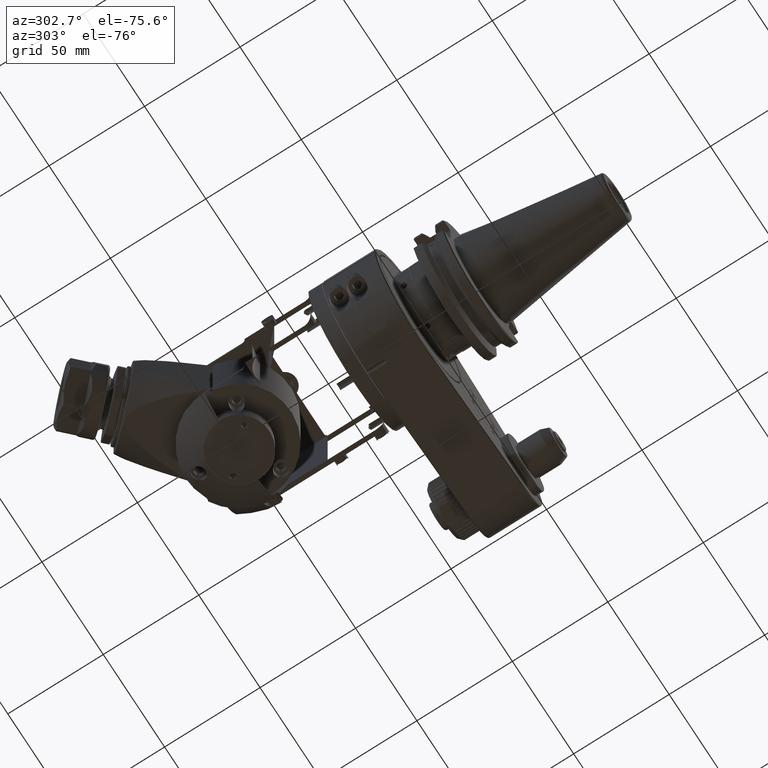
[diagram: clean part render]
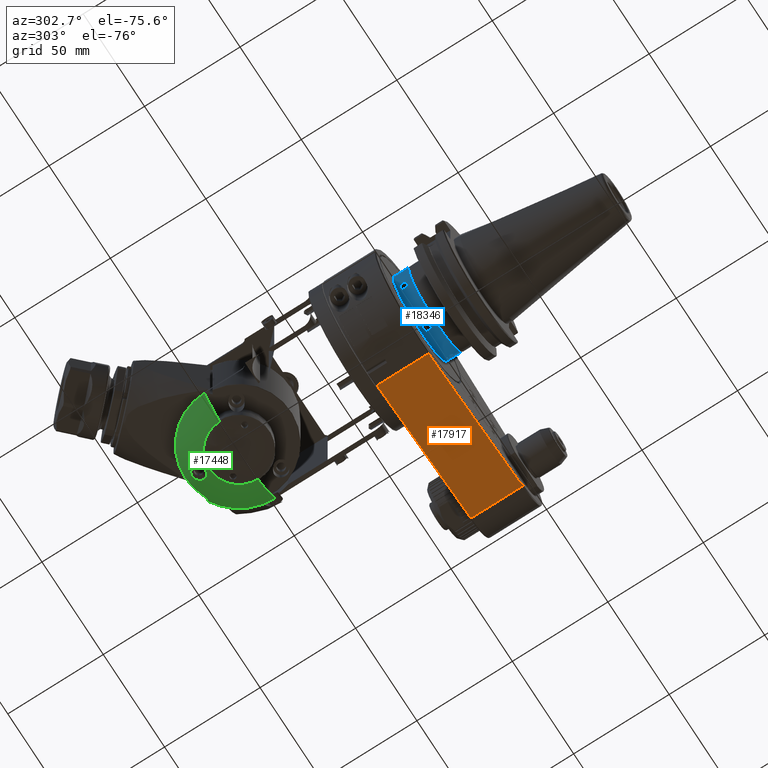
[diagram: same view with three faces highlighted in distinct colors, each labeled with its STEP entity id]
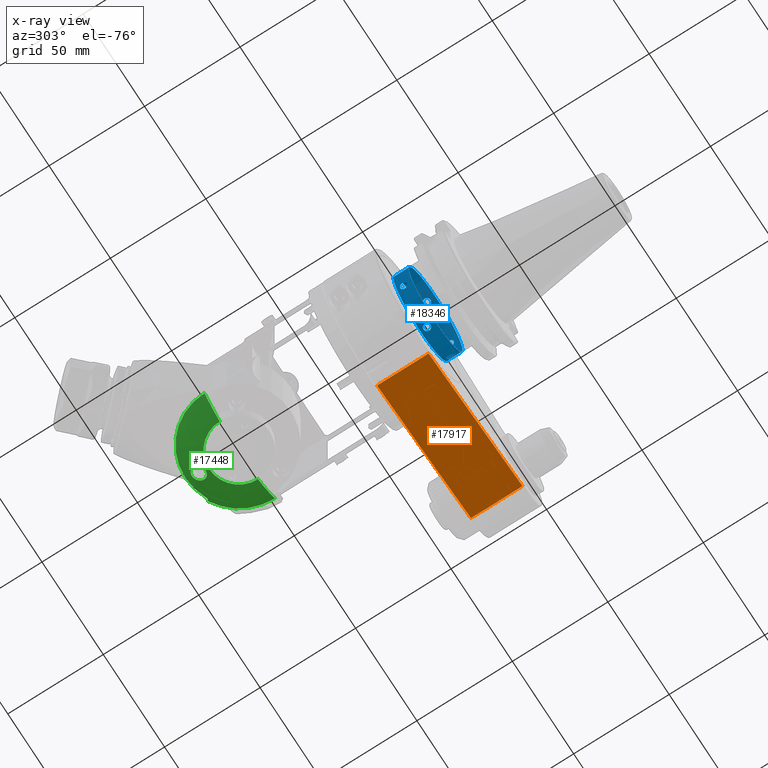
[diagram: x-ray of the same camera — body ghosted, the three highlighted faces saturated]
A machine part, auxiliary view with three faces highlighted in distinct colors.
The next image is the same camera in x-ray (body ghosted, the three faces saturated) — at least one of them is partly hidden behind the body in this view.
Their STEP definitions:

[orange] entity #17917 — the highlighted planar face has unit normal (0.2062, 0, -0.9785).
#632=PLANE('',#19749);
#1589=FACE_OUTER_BOUND('',#2755,.T.);
#2755=EDGE_LOOP('',(#14441,#14442,#14443,#14444));
#5029=LINE('',#31580,#6322);
#5073=LINE('',#31748,#6366);
#5075=LINE('',#31753,#6368);
#5076=LINE('',#31754,#6369);
#6322=VECTOR('',#23552,10.);
#6366=VECTOR('',#23732,26.99994649519);
#6368=VECTOR('',#23738,10.);
#6369=VECTOR('',#23739,26.99995876983);
#8209=VERTEX_POINT('',#31575);
#8210=VERTEX_POINT('',#31579);
#8266=VERTEX_POINT('',#31744);
#8267=VERTEX_POINT('',#31752);
#10393=EDGE_CURVE('',#8209,#8210,#5029,.T.);
#10476=EDGE_CURVE('',#8209,#8266,#5073,.T.);
#10478=EDGE_CURVE('',#8267,#8266,#5075,.T.);
#10479=EDGE_CURVE('',#8210,#8267,#5076,.T.);
#14441=ORIENTED_EDGE('',*,*,#10478,.F.);
#14442=ORIENTED_EDGE('',*,*,#10479,.F.);
#14443=ORIENTED_EDGE('',*,*,#10393,.F.);
#14444=ORIENTED_EDGE('',*,*,#10476,.T.);
#17917=ADVANCED_FACE('',(#1589),#632,.T.);
#19749=AXIS2_PLACEMENT_3D('',#31751,#23736,#23737);
#23552=DIRECTION('',(-0.978499329330379,-3.09308214360713E-14,-0.206249999999996));
#23732=DIRECTION('',(3.786131838683E-10,-1.,-1.854205996952E-9));
#23736=DIRECTION('center_axis',(0.206249999999996,0.,-0.978499329330379));
#23737=DIRECTION('ref_axis',(0.978499329330379,0.,0.206249999999996));
#23738=DIRECTION('',(0.978499329330379,-3.09308214360713E-14,0.206249999999996));
#23739=DIRECTION('',(-2.120057493026E-10,-1.,1.048212665938E-9));
#31575=CARTESIAN_POINT('',(84.1249934785795,-0.50006661342005,-19.569955918573));
#31579=CARTESIAN_POINT('',(7.52812006363607,-0.50005124586895,-35.7152019106784));
#31580=CARTESIAN_POINT('',(26.6773437500002,-0.500000000002543,-31.6789157870722));
#31744=CARTESIAN_POINT('',(84.1250003284126,-27.4998892448473,-19.5699881446779));
#31748=CARTESIAN_POINT('',(84.124994422,-0.5000267779635,-19.56996039439));
#31751=CARTESIAN_POINT('Origin',(7.528125,0.,-35.71522552056));
#31752=CARTESIAN_POINT('',(7.52812005689367,-27.4999486823243,-35.7152018775579));
#31753=CARTESIAN_POINT('',(26.6773437499998,-27.4999999999975,-31.6789157870723));
#31754=CARTESIAN_POINT('',(7.528120789429,-0.5000206006538,-35.71520535402));

[blue] entity #18346 — the highlighted cylindrical surface (bore or boss wall) has radius 22 mm, axis along (0, 1, 0).
#1054=FACE_BOUND('',#3220,.T.);
#1055=FACE_BOUND('',#3221,.T.);
#1056=FACE_BOUND('',#3222,.T.);
#1057=FACE_BOUND('',#3223,.T.);
#1058=FACE_BOUND('',#3224,.T.);
#1059=FACE_BOUND('',#3225,.T.);
#2018=FACE_OUTER_BOUND('',#3219,.T.);
#3219=EDGE_LOOP('',(#16578,#16579,#16580,#16581));
#3220=EDGE_LOOP('',(#16582,#16583));
#3221=EDGE_LOOP('',(#16584,#16585));
#3222=EDGE_LOOP('',(#16586,#16587));
#3223=EDGE_LOOP('',(#16588,#16589));
#3224=EDGE_LOOP('',(#16590,#16591));
#3225=EDGE_LOOP('',(#16592,#16593));
#4321=CIRCLE('',#20491,22.);
#4322=CIRCLE('',#20492,22.);
#5614=LINE('',#36560,#6907);
#6907=VECTOR('',#25761,22.);
#7204=B_SPLINE_CURVE_WITH_KNOTS('',3,(#36532,#36533,#36534,#36535,#36536,
#36537,#36538,#36539,#36540,#36541,#36542,#36543,#36544,#36545,#36546,#36547,
#36548,#36549,#36550,#36551,#36552,#36553),.UNSPECIFIED.,.F.,.F.,(4,2,2,
2,2,2,2,2,2,2,4),(2.70761422656107E-5,0.0359340432566916,0.0729253057835317,
0.138262210485202,0.198758613108278,0.259087729639249,0.289050743533897,
0.349320787720796,0.393453679054119,0.412400549497627,0.426936763639686),
 .UNSPECIFIED.);
#7205=B_SPLINE_CURVE_WITH_KNOTS('',3,(#36564,#36565,#36566,#36567,#36568,
#36569,#36570,#36571,#36572,#36573,#36574,#36575,#36576,#36577,#36578,#36579,
#36580,#36581,#36582,#36583,#36584,#36585),.UNSPECIFIED.,.F.,.F.,(4,2,2,
2,2,2,2,2,2,2,4),(2.66205917725893E-5,0.0359421949751175,0.0730813720902317,
0.135369835287977,0.191331741505798,0.24715371901097,0.274901546833426,
0.33076977689469,0.377612982746382,0.397854273141897,0.412777293558901),
 .UNSPECIFIED.);
#7206=B_SPLINE_CURVE_WITH_KNOTS('',3,(#36586,#36587,#36588,#36589,#36590,
#36591,#36592,#36593,#36594,#36595,#36596,#36597,#36598,#36599,#36600,#36601,
#36602,#36603,#36604,#36605,#36606,#36607),.UNSPECIFIED.,.F.,.F.,(4,2,2,
2,2,2,2,2,2,2,4),(2.66205916898188E-5,0.035942194977705,0.073081372094459,
0.135369835219416,0.1913317413261,0.247153718722746,0.274901546492413,0.330769776441402,
0.377612982174783,0.397854272564408,0.412777292995302),.UNSPECIFIED.);
#7207=B_SPLINE_CURVE_WITH_KNOTS('',3,(#36610,#36611,#36612,#36613,#36614,
#36615,#36616,#36617,#36618,#36619,#36620,#36621,#36622,#36623,#36624,#36625,
#36626,#36627,#36628,#36629,#36630,#36631),.UNSPECIFIED.,.F.,.F.,(4,2,2,
2,2,2,2,2,2,2,4),(2.66205916893746E-5,0.0359421949777266,0.0730813720945034,
0.135369835217522,0.191331741321306,0.247153718715053,0.274901546483259,
0.330769776429287,0.37761298216006,0.397854272548474,0.41277729297846),
 .UNSPECIFIED.);
#7208=B_SPLINE_CURVE_WITH_KNOTS('',3,(#36632,#36633,#36634,#36635,#36636,
#36637,#36638,#36639,#36640,#36641,#36642,#36643,#36644,#36645,#36646,#36647,
#36648,#36649,#36650,#36651,#36652,#36653),.UNSPECIFIED.,.F.,.F.,(4,2,2,
2,2,2,2,2,2,2,4),(2.66205917757193E-5,0.0359421949751185,0.0730813720902252,
0.135369835288192,0.191331741506377,0.247153719011919,0.274901546834568,
0.33076977689624,0.377612982748358,0.397854273144277,0.412777293561644),
 .UNSPECIFIED.);
#7209=B_SPLINE_CURVE_WITH_KNOTS('',3,(#36656,#36657,#36658,#36659,#36660,
#36661,#36662,#36663,#36664,#36665,#36666,#36667,#36668,#36669,#36670,#36671,
#36672,#36673,#36674,#36675,#36676,#36677),.UNSPECIFIED.,.F.,.F.,(4,2,2,
2,2,2,2,2,2,2,4),(2.70255293382581E-5,0.0359237117556276,0.0729128221826624,
0.13814099931121,0.198476055736975,0.25866516525732,0.288546965210307,0.348578840058976,
0.392750995423109,0.411751985308104,0.426325039940762),.UNSPECIFIED.);
#7210=B_SPLINE_CURVE_WITH_KNOTS('',3,(#36678,#36679,#36680,#36681,#36682,
#36683,#36684,#36685,#36686,#36687,#36688,#36689,#36690,#36691,#36692,#36693,
#36694,#36695,#36696,#36697,#36698,#36699),.UNSPECIFIED.,.F.,.F.,(4,2,2,
2,2,2,2,2,2,2,4),(2.70761422656099E-5,0.0359340432567071,0.0729253057835705,
0.138262210485135,0.198758613108166,0.259087729638971,0.28905074353351,
0.349320787720218,0.393453679101162,0.412400549579827,0.426936763750007),
 .UNSPECIFIED.);
#7211=B_SPLINE_CURVE_WITH_KNOTS('',3,(#36702,#36703,#36704,#36705,#36706,
#36707,#36708,#36709,#36710,#36711,#36712,#36713,#36714,#36715,#36716,#36717,
#36718,#36719,#36720,#36721,#36722,#36723),.UNSPECIFIED.,.F.,.F.,(4,2,2,
2,2,2,2,2,2,2,4),(2.66205917712776E-5,0.0359421949751182,0.0730813720902341,
0.135369835287852,0.191331741505479,0.247153719010459,0.27490154683282,
0.330769776893892,0.377612982745423,0.397854273140877,0.412777293557838),
 .UNSPECIFIED.);
#7212=B_SPLINE_CURVE_WITH_KNOTS('',3,(#36724,#36725,#36726,#36727,#36728,
#36729,#36730,#36731,#36732,#36733,#36734,#36735,#36736,#36737,#36738,#36739,
#36740,#36741,#36742,#36743,#36744,#36745),.UNSPECIFIED.,.F.,.F.,(4,2,2,
2,2,2,2,2,2,2,4),(2.66205916884863E-5,0.0359421949777299,0.0730813720945131,
0.135369835218105,0.19133174132275,0.247153718717358,0.274901546486013,
0.330769776432966,0.377612982164585,0.397854272553528,0.412777292983952),
 .UNSPECIFIED.);
#7213=B_SPLINE_CURVE_WITH_KNOTS('',3,(#36746,#36747,#36748,#36749,#36750,
#36751,#36752,#36753,#36754,#36755,#36756,#36757,#36758,#36759,#36760,#36761,
#36762,#36763,#36764,#36765,#36766,#36767),.UNSPECIFIED.,.F.,.F.,(4,2,2,
2,2,2,2,2,2,2,4),(2.70255293400281E-5,0.0359237117570428,0.0729128221855382,
0.138140999285124,0.198476055658925,0.258665165131692,0.288546965061358,
0.348578839862751,0.392750995190078,0.411751985058701,0.426325039678788),
 .UNSPECIFIED.);
#7214=B_SPLINE_CURVE_WITH_KNOTS('',3,(#36770,#36771,#36772,#36773,#36774,
#36775,#36776,#36777,#36778,#36779,#36780,#36781,#36782,#36783,#36784,#36785,
#36786,#36787,#36788,#36789,#36790,#36791),.UNSPECIFIED.,.F.,.F.,(4,2,2,
2,2,2,2,2,2,2,4),(2.66205916893746E-5,0.0359421949777044,0.0730813720944481,
0.135369835218971,0.191331741325009,0.24715371872101,0.274901546490325,
0.330769776438571,0.377612982171327,0.39785427256061,0.412777292991227),
 .UNSPECIFIED.);
#7215=B_SPLINE_CURVE_WITH_KNOTS('',3,(#36792,#36793,#36794,#36795,#36796,
#36797,#36798,#36799,#36800,#36801,#36802,#36803,#36804,#36805,#36806,#36807,
#36808,#36809,#36810,#36811,#36812,#36813),.UNSPECIFIED.,.F.,.F.,(4,2,2,
2,2,2,2,2,2,2,4),(2.66205917761634E-5,0.0359421949751207,0.0730813720902414,
0.135369835288282,0.191331741506558,0.247153719012191,0.274901546834886,
0.330769776896648,0.377612982748828,0.397854273144764,0.412777293562141),
 .UNSPECIFIED.);
#8839=VERTEX_POINT('',#36530);
#8840=VERTEX_POINT('',#36531);
#8841=VERTEX_POINT('',#36557);
#8842=VERTEX_POINT('',#36559);
#8843=VERTEX_POINT('',#36562);
#8844=VERTEX_POINT('',#36563);
#8845=VERTEX_POINT('',#36608);
#8846=VERTEX_POINT('',#36609);
#8847=VERTEX_POINT('',#36654);
#8848=VERTEX_POINT('',#36655);
#8849=VERTEX_POINT('',#36700);
#8850=VERTEX_POINT('',#36701);
#8851=VERTEX_POINT('',#36768);
#8852=VERTEX_POINT('',#36769);
#11459=EDGE_CURVE('',#8839,#8840,#7204,.T.);
#11462=EDGE_CURVE('',#8841,#8841,#4321,.T.);
#11463=EDGE_CURVE('',#8841,#8842,#5614,.T.);
#11464=EDGE_CURVE('',#8842,#8842,#4322,.T.);
#11465=EDGE_CURVE('',#8843,#8844,#7205,.T.);
#11466=EDGE_CURVE('',#8844,#8843,#7206,.T.);
#11467=EDGE_CURVE('',#8845,#8846,#7207,.T.);
#11468=EDGE_CURVE('',#8846,#8845,#7208,.T.);
#11469=EDGE_CURVE('',#8847,#8848,#7209,.T.);
#11470=EDGE_CURVE('',#8848,#8847,#7210,.T.);
#11471=EDGE_CURVE('',#8849,#8850,#7211,.T.);
#11472=EDGE_CURVE('',#8850,#8849,#7212,.T.);
#11473=EDGE_CURVE('',#8840,#8839,#7213,.T.);
#11474=EDGE_CURVE('',#8851,#8852,#7214,.T.);
#11475=EDGE_CURVE('',#8852,#8851,#7215,.T.);
#16578=ORIENTED_EDGE('',*,*,#11462,.T.);
#16579=ORIENTED_EDGE('',*,*,#11463,.T.);
#16580=ORIENTED_EDGE('',*,*,#11464,.T.);
#16581=ORIENTED_EDGE('',*,*,#11463,.F.);
#16582=ORIENTED_EDGE('',*,*,#11465,.T.);
#16583=ORIENTED_EDGE('',*,*,#11466,.T.);
#16584=ORIENTED_EDGE('',*,*,#11467,.T.);
#16585=ORIENTED_EDGE('',*,*,#11468,.T.);
#16586=ORIENTED_EDGE('',*,*,#11469,.T.);
#16587=ORIENTED_EDGE('',*,*,#11470,.T.);
#16588=ORIENTED_EDGE('',*,*,#11471,.T.);
#16589=ORIENTED_EDGE('',*,*,#11472,.T.);
#16590=ORIENTED_EDGE('',*,*,#11473,.T.);
#16591=ORIENTED_EDGE('',*,*,#11459,.T.);
#16592=ORIENTED_EDGE('',*,*,#11474,.T.);
#16593=ORIENTED_EDGE('',*,*,#11475,.T.);
#17366=CYLINDRICAL_SURFACE('',#20490,22.);
#18346=ADVANCED_FACE('',(#2018,#1054,#1055,#1056,#1057,#1058,#1059),#17366,
 .T.);
#20490=AXIS2_PLACEMENT_3D('',#36556,#25757,#25758);
#20491=AXIS2_PLACEMENT_3D('',#36558,#25759,#25760);
#20492=AXIS2_PLACEMENT_3D('',#36561,#25762,#25763);
#25757=DIRECTION('center_axis',(0.,1.,0.));
#25758=DIRECTION('ref_axis',(-1.,0.,0.));
#25759=DIRECTION('center_axis',(0.,-1.,0.));
#25760=DIRECTION('ref_axis',(-1.,0.,0.));
#25761=DIRECTION('',(0.,-1.,0.));
#25762=DIRECTION('center_axis',(0.,1.,0.));
#25763=DIRECTION('ref_axis',(-1.,0.,0.));
#36530=CARTESIAN_POINT('',(-1.86705191588859,-31.4999992386329,-21.9206322222352));
#36531=CARTESIAN_POINT('',(1.8670444659533,-31.5000007591516,-21.920632856776));
#36532=CARTESIAN_POINT('Ctrl Pts',(-1.86739541169952,-31.4999993236028,
-21.9206029656204));
#36533=CARTESIAN_POINT('Ctrl Pts',(-1.86739698436819,-31.6196897936704,
-21.9206028316462));
#36534=CARTESIAN_POINT('Ctrl Pts',(-1.85520339982364,-31.7397646123196,
-21.9216508003254));
#36535=CARTESIAN_POINT('Ctrl Pts',(-1.80760710349478,-31.9781814427059,
-21.9256275612955));
#36536=CARTESIAN_POINT('Ctrl Pts',(-1.77139247149949,-32.0969735721227,
-21.9286219279142));
#36537=CARTESIAN_POINT('Ctrl Pts',(-1.63939477831783,-32.4117140384862,
-21.9389956908176));
#36538=CARTESIAN_POINT('Ctrl Pts',(-1.5098932193699,-32.619720967829,-21.9489369507526));
#36539=CARTESIAN_POINT('Ctrl Pts',(-1.14711351931625,-32.9798121305146,
-21.970768315164));
#36540=CARTESIAN_POINT('Ctrl Pts',(-0.940521159148574,-33.1166206199722,
-21.9810656188696));
#36541=CARTESIAN_POINT('Ctrl Pts',(-0.486083933160052,-33.3026846824959,
-21.9958010078796));
#36542=CARTESIAN_POINT('Ctrl Pts',(-0.243120905256043,-33.3503201592201,
-22.0000276308303));
#36543=CARTESIAN_POINT('Ctrl Pts',(0.124471315934706,-33.3498241831319,
-21.9999860664049));
#36544=CARTESIAN_POINT('Ctrl Pts',(0.246257887979609,-33.3378266032755,
-21.9989478109778));
#36545=CARTESIAN_POINT('Ctrl Pts',(0.606929346827936,-33.2663728849358,
-21.9929463359505));
#36546=CARTESIAN_POINT('Ctrl Pts',(0.8359435278108,-33.1719968755938,-21.9850628722679));
#36547=CARTESIAN_POINT('Ctrl Pts',(1.18966958646694,-32.9368916291985,-21.968320245077));
#36548=CARTESIAN_POINT('Ctrl Pts',(1.38666726577538,-32.7756594505031,-21.9569078493046));
#36549=CARTESIAN_POINT('Ctrl Pts',(1.62798522461737,-32.4143547184903,-21.939802740968));
#36550=CARTESIAN_POINT('Ctrl Pts',(1.72410392535017,-32.2468029336278,-21.9324395680262));
#36551=CARTESIAN_POINT('Ctrl Pts',(1.84146501243408,-31.8541591357841,-21.9228561070323));
#36552=CARTESIAN_POINT('Ctrl Pts',(1.86679211059871,-31.677896155816,-21.9206543520967));
#36553=CARTESIAN_POINT('Ctrl Pts',(1.86670139337399,-31.5000008450991,-21.9206620773182));
#36556=CARTESIAN_POINT('Origin',(0.,-36.725,0.));
#36557=CARTESIAN_POINT('',(22.,-28.,0.));
#36558=CARTESIAN_POINT('Origin',(0.,-28.,0.));
#36559=CARTESIAN_POINT('',(22.,-36.,0.));
#36560=CARTESIAN_POINT('',(22.,-36.725,-2.69422295812418E-15));
#36561=CARTESIAN_POINT('Origin',(0.,-36.,0.));
#36562=CARTESIAN_POINT('',(18.050304834982,-31.500000727675,12.5772212847961));
#36563=CARTESIAN_POINT('',(19.9173455591436,-31.499999272325,9.34341189074776));
#36564=CARTESIAN_POINT('Ctrl Pts',(18.0501088714867,-31.5000006284579,12.5775025234535));
#36565=CARTESIAN_POINT('Ctrl Pts',(18.0501114195227,-31.380281445944,12.5774988667396));
#36566=CARTESIAN_POINT('Ctrl Pts',(18.0571152308996,-31.2601572836355,12.5674636772727));
#36567=CARTESIAN_POINT('Ctrl Pts',(18.0844160521432,-31.0212082208774,12.528147834694));
#36568=CARTESIAN_POINT('Ctrl Pts',(18.1052273079135,-30.9019560901863,12.498122449188));
#36569=CARTESIAN_POINT('Ctrl Pts',(18.1782600597421,-30.5962211398799,12.3918275018355));
#36570=CARTESIAN_POINT('Ctrl Pts',(18.2503885630801,-30.3855765061374,12.286625823399));
#36571=CARTESIAN_POINT('Ctrl Pts',(18.4539520804529,-30.0198159962253,11.9784059808657));
#36572=CARTESIAN_POINT('Ctrl Pts',(18.5661025453278,-29.8831915488591,11.8047280772151));
#36573=CARTESIAN_POINT('Ctrl Pts',(18.8059775242803,-29.6972729274245,11.4187004292407));
#36574=CARTESIAN_POINT('Ctrl Pts',(18.9310966611418,-29.6496813588661,11.2104334738082));
#36575=CARTESIAN_POINT('Ctrl Pts',(19.1147802763928,-29.6501689305436,10.892201765171));
#36576=CARTESIAN_POINT('Ctrl Pts',(19.1747690620457,-29.6621715541998,10.7862217224801));
#36577=CARTESIAN_POINT('Ctrl Pts',(19.3500200886472,-29.7336740998454,10.4706678996254));
#36578=CARTESIAN_POINT('Ctrl Pts',(19.4577684858734,-29.8281616555928,10.2682565381579));
#36579=CARTESIAN_POINT('Ctrl Pts',(19.6301937674292,-30.0780138694421,9.93402795890823));
#36580=CARTESIAN_POINT('Ctrl Pts',(19.7139855411559,-30.2428969682998,9.76643858279938));
#36581=CARTESIAN_POINT('Ctrl Pts',(19.8121583099762,-30.5778670241257,9.56467284945123));
#36582=CARTESIAN_POINT('Ctrl Pts',(19.8552821715775,-30.746166441192,9.47483655281754));
#36583=CARTESIAN_POINT('Ctrl Pts',(19.9065505558538,-31.1468450495491,9.36652716130427));
#36584=CARTESIAN_POINT('Ctrl Pts',(19.917241027207,-31.3225975278239,9.34363472496024));
#36585=CARTESIAN_POINT('Ctrl Pts',(19.9171999810702,-31.4999991731079,9.34372221944012));
#36586=CARTESIAN_POINT('Ctrl Pts',(19.917491137217,-31.4999993715422,9.3431015620554));
#36587=CARTESIAN_POINT('Ctrl Pts',(19.9174892444274,-31.619718554065,9.34310559707741));
#36588=CARTESIAN_POINT('Ctrl Pts',(19.9123004211056,-31.7398427163786,9.35418867038686));
#36589=CARTESIAN_POINT('Ctrl Pts',(19.8919023132792,-31.9787917791576,9.39748979642551));
#36590=CARTESIAN_POINT('Ctrl Pts',(19.8763051945548,-32.0980439098569,9.43052556536642));
#36591=CARTESIAN_POINT('Ctrl Pts',(19.8207674458015,-32.4037788599507,9.54692125736378));
#36592=CARTESIAN_POINT('Ctrl Pts',(19.7657243714507,-32.6144234937552,9.66198721275899));
#36593=CARTESIAN_POINT('Ctrl Pts',(19.6005799164896,-32.9801840037904,9.99238831147948));
#36594=CARTESIAN_POINT('Ctrl Pts',(19.5062456722932,-33.1168084511502,10.1763524149255));
#36595=CARTESIAN_POINT('Ctrl Pts',(19.2918734120665,-33.3027270725759,10.5771040644063));
#36596=CARTESIAN_POINT('Ctrl Pts',(19.1740685063179,-33.3503186411332,10.7895938931545));
#36597=CARTESIAN_POINT('Ctrl Pts',(18.9903135699804,-33.3498310694604,11.1077844245281));
#36598=CARTESIAN_POINT('Ctrl Pts',(18.9285265535434,-33.3378284458057,11.2127262581894));
#36599=CARTESIAN_POINT('Ctrl Pts',(18.7428744400021,-33.2663259001641,11.5222750106737));
#36600=CARTESIAN_POINT('Ctrl Pts',(18.6214552575746,-33.1718383444241,11.7167935406157));
#36601=CARTESIAN_POINT('Ctrl Pts',(18.4182174581115,-32.9219861306659,12.0332325042306));
#36602=CARTESIAN_POINT('Ctrl Pts',(18.314976687836,-32.75710303184,12.1895929970013));
#36603=CARTESIAN_POINT('Ctrl Pts',(18.1893288214142,-32.4221329756525,12.3754959756401));
#36604=CARTESIAN_POINT('Ctrl Pts',(18.1330902371958,-32.2538335585587,12.4577604835409));
#36605=CARTESIAN_POINT('Ctrl Pts',(18.0649257448546,-31.8531549504662,12.5563149024346));
#36606=CARTESIAN_POINT('Ctrl Pts',(18.0504455491,-31.6774024721856,12.5770193403809));
#36607=CARTESIAN_POINT('Ctrl Pts',(18.0505007984774,-31.5000008268922,12.5769400461387));
#36608=CARTESIAN_POINT('',(-19.9173455591436,-31.500000727675,9.34341189074776));
#36609=CARTESIAN_POINT('',(-18.050304834982,-31.499999272325,12.5772212847961));
#36610=CARTESIAN_POINT('Ctrl Pts',(-19.917491137217,-31.5000006284578,9.3431015620554));
#36611=CARTESIAN_POINT('Ctrl Pts',(-19.9174892444274,-31.380281445935,9.34310559707741));
#36612=CARTESIAN_POINT('Ctrl Pts',(-19.9123004211056,-31.2601572836212,
9.35418867038687));
#36613=CARTESIAN_POINT('Ctrl Pts',(-19.8919023132792,-31.0212082208421,
9.39748979642558));
#36614=CARTESIAN_POINT('Ctrl Pts',(-19.8763051945547,-30.9019560901427,
9.43052556536653));
#36615=CARTESIAN_POINT('Ctrl Pts',(-19.8207674458025,-30.5962211400548,
9.54692125736168));
#36616=CARTESIAN_POINT('Ctrl Pts',(-19.7657243714525,-30.3855765062487,
9.66198721275535));
#36617=CARTESIAN_POINT('Ctrl Pts',(-19.6005799164897,-30.0198159962098,
9.99238831147928));
#36618=CARTESIAN_POINT('Ctrl Pts',(-19.5062456722932,-29.8831915488498,
10.1763524149254));
#36619=CARTESIAN_POINT('Ctrl Pts',(-19.2918734120665,-29.6972729274241,
10.5771040644062));
#36620=CARTESIAN_POINT('Ctrl Pts',(-19.1740685063179,-29.6496813588668,
10.7895938931545));
#36621=CARTESIAN_POINT('Ctrl Pts',(-18.9903135699804,-29.6501689305397,
11.1077844245281));
#36622=CARTESIAN_POINT('Ctrl Pts',(-18.9285265535434,-29.6621715541943,
11.2127262581894));
#36623=CARTESIAN_POINT('Ctrl Pts',(-18.7428744400021,-29.733674099836,11.5222750106738));
#36624=CARTESIAN_POINT('Ctrl Pts',(-18.6214552575745,-29.8281616555759,
11.7167935406157));
#36625=CARTESIAN_POINT('Ctrl Pts',(-18.4182174581118,-30.0780138693338,
12.0332325042302));
#36626=CARTESIAN_POINT('Ctrl Pts',(-18.3149766878362,-30.2428969681595,
12.189592997001));
#36627=CARTESIAN_POINT('Ctrl Pts',(-18.1893288214143,-30.5778670243472,
12.37549597564));
#36628=CARTESIAN_POINT('Ctrl Pts',(-18.1330902371958,-30.746166441441,12.4577604835408));
#36629=CARTESIAN_POINT('Ctrl Pts',(-18.0649257448546,-31.1468450495338,
12.5563149024346));
#36630=CARTESIAN_POINT('Ctrl Pts',(-18.0504455491,-31.3225975278144,12.5770193403809));
#36631=CARTESIAN_POINT('Ctrl Pts',(-18.0505007984774,-31.4999991731078,
12.5769400461387));
#36632=CARTESIAN_POINT('Ctrl Pts',(-18.0501088714867,-31.4999993715422,
12.5775025234535));
#36633=CARTESIAN_POINT('Ctrl Pts',(-18.0501114195227,-31.619718554056,12.5774988667396));
#36634=CARTESIAN_POINT('Ctrl Pts',(-18.0571152308996,-31.7398427163645,
12.5674636772727));
#36635=CARTESIAN_POINT('Ctrl Pts',(-18.0844160521432,-31.9787917791226,
12.5281478346941));
#36636=CARTESIAN_POINT('Ctrl Pts',(-18.1052273079135,-32.0980439098136,
12.498122449188));
#36637=CARTESIAN_POINT('Ctrl Pts',(-18.1782600597422,-32.4037788601208,
12.3918275018353));
#36638=CARTESIAN_POINT('Ctrl Pts',(-18.2503885630804,-32.6144234938631,
12.2866258233986));
#36639=CARTESIAN_POINT('Ctrl Pts',(-18.4539520804529,-32.9801840037748,
11.9784059808656));
#36640=CARTESIAN_POINT('Ctrl Pts',(-18.5661025453279,-33.1168084511409,
11.804728077215));
#36641=CARTESIAN_POINT('Ctrl Pts',(-18.8059775242803,-33.3027270725755,
11.4187004292406));
#36642=CARTESIAN_POINT('Ctrl Pts',(-18.9310966611418,-33.3503186411339,
11.2104334738082));
#36643=CARTESIAN_POINT('Ctrl Pts',(-19.1147802763928,-33.3498310694564,
10.892201765171));
#36644=CARTESIAN_POINT('Ctrl Pts',(-19.1747690620457,-33.3378284458002,
10.7862217224801));
#36645=CARTESIAN_POINT('Ctrl Pts',(-19.3500200886472,-33.2663259001546,
10.4706678996254));
#36646=CARTESIAN_POINT('Ctrl Pts',(-19.4577684858734,-33.1718383444072,
10.2682565381579));
#36647=CARTESIAN_POINT('Ctrl Pts',(-19.6301937674294,-32.9219861305577,
9.93402795890792));
#36648=CARTESIAN_POINT('Ctrl Pts',(-19.713985541156,-32.7571030316999,9.76643858279918));
#36649=CARTESIAN_POINT('Ctrl Pts',(-19.8121583099765,-32.4221329758733,
9.56467284945061));
#36650=CARTESIAN_POINT('Ctrl Pts',(-19.8552821715776,-32.253833558807,9.47483655281725));
#36651=CARTESIAN_POINT('Ctrl Pts',(-19.9065505558538,-31.8531549504508,
9.36652716130427));
#36652=CARTESIAN_POINT('Ctrl Pts',(-19.917241027207,-31.6774024721762,9.34363472496024));
#36653=CARTESIAN_POINT('Ctrl Pts',(-19.9171999810702,-31.5000008268921,
9.34372221944012));
#36654=CARTESIAN_POINT('',(-1.86704446595415,-31.5000007591516,21.920632856776));
#36655=CARTESIAN_POINT('',(1.86705191588774,-31.4999992386329,21.9206322222353));
#36656=CARTESIAN_POINT('Ctrl Pts',(-1.86739341797383,-31.5000006717311,
21.9206031354639));
#36657=CARTESIAN_POINT('Ctrl Pts',(-1.86739450466544,-31.3803444724763,
21.9206030428897));
#36658=CARTESIAN_POINT('Ctrl Pts',(-1.85520944130387,-31.2603041556736,
21.9216502738706));
#36659=CARTESIAN_POINT('Ctrl Pts',(-1.80763624846111,-31.0219240654025,
21.9256251484967));
#36660=CARTESIAN_POINT('Ctrl Pts',(-1.77143172964455,-30.9031382647984,
21.9286187361618));
#36661=CARTESIAN_POINT('Ctrl Pts',(-1.63959522648175,-30.5887287160034,
21.9389801250423));
#36662=CARTESIAN_POINT('Ctrl Pts',(-1.51023056982057,-30.3806634283242,
21.948915174781));
#36663=CARTESIAN_POINT('Ctrl Pts',(-1.14730604828256,-30.0203343847848,
21.9707580921138));
#36664=CARTESIAN_POINT('Ctrl Pts',(-0.940743890075967,-29.8835083268855,
21.9810559913224));
#36665=CARTESIAN_POINT('Ctrl Pts',(-0.486246584312842,-29.6973451223135,
21.9957981309227));
#36666=CARTESIAN_POINT('Ctrl Pts',(-0.243277987982387,-29.64968617301,22.0000274427526));
#36667=CARTESIAN_POINT('Ctrl Pts',(0.124474073142143,-29.6501836505737,
21.9999861682736));
#36668=CARTESIAN_POINT('Ctrl Pts',(0.246319636525366,-29.6621784192487,
21.9989473669699));
#36669=CARTESIAN_POINT('Ctrl Pts',(0.606827850765219,-29.7336106059146,
21.9929468518513));
#36670=CARTESIAN_POINT('Ctrl Pts',(0.835641636171417,-29.8278914295365,
21.9850727992187));
#36671=CARTESIAN_POINT('Ctrl Pts',(1.18980571734968,-30.0631333963977,21.9683170028135));
#36672=CARTESIAN_POINT('Ctrl Pts',(1.38663786902639,-30.2244509395204,21.9569076782128));
#36673=CARTESIAN_POINT('Ctrl Pts',(1.62772295883416,-30.5851852555685,21.9398222980286));
#36674=CARTESIAN_POINT('Ctrl Pts',(1.72395787097603,-30.7528140657507,21.9324512889669));
#36675=CARTESIAN_POINT('Ctrl Pts',(1.84144174617667,-31.1456850077966,21.9228581643749));
#36676=CARTESIAN_POINT('Ctrl Pts',(1.86679291818149,-31.3220269857405,21.9206542833204));
#36677=CARTESIAN_POINT('Ctrl Pts',(1.86670254063647,-31.4999991522086,21.9206619796205));
#36678=CARTESIAN_POINT('Ctrl Pts',(1.86739541169952,-31.4999993236028,21.9206029656204));
#36679=CARTESIAN_POINT('Ctrl Pts',(1.86739698436819,-31.6196897936705,21.9206028316462));
#36680=CARTESIAN_POINT('Ctrl Pts',(1.85520339982362,-31.7397646123197,21.9216508003254));
#36681=CARTESIAN_POINT('Ctrl Pts',(1.80760710349474,-31.9781814427061,21.9256275612955));
#36682=CARTESIAN_POINT('Ctrl Pts',(1.77139247149943,-32.0969735721229,21.9286219279142));
#36683=CARTESIAN_POINT('Ctrl Pts',(1.63939477831788,-32.411714038486,21.9389956908176));
#36684=CARTESIAN_POINT('Ctrl Pts',(1.50989321937008,-32.6197209678288,21.9489369507526));
#36685=CARTESIAN_POINT('Ctrl Pts',(1.14711351931602,-32.9798121305148,21.970768315164));
#36686=CARTESIAN_POINT('Ctrl Pts',(0.940521159147973,-33.1166206199725,
21.9810656188696));
#36687=CARTESIAN_POINT('Ctrl Pts',(0.486083933159408,-33.302684682496,21.9958010078796));
#36688=CARTESIAN_POINT('Ctrl Pts',(0.243120905255741,-33.3503201592201,
22.0000276308303));
#36689=CARTESIAN_POINT('Ctrl Pts',(-0.124471315934604,-33.3498241831319,
21.9999860664049));
#36690=CARTESIAN_POINT('Ctrl Pts',(-0.246257887979414,-33.3378266032755,
21.9989478109778));
#36691=CARTESIAN_POINT('Ctrl Pts',(-0.606929346827568,-33.2663728849358,
21.9929463359505));
#36692=CARTESIAN_POINT('Ctrl Pts',(-0.835943527810392,-33.1719968755938,
21.985062872268));
#36693=CARTESIAN_POINT('Ctrl Pts',(-1.18966958662843,-32.9368916290906,
21.9683202450694));
#36694=CARTESIAN_POINT('Ctrl Pts',(-1.38666726586984,-32.7756594503595,
21.9569078492979));
#36695=CARTESIAN_POINT('Ctrl Pts',(-1.6279852246327,-32.4143547184706,21.9398027409669));
#36696=CARTESIAN_POINT('Ctrl Pts',(-1.72410392535615,-32.2468029336145,
21.9324395680257));
#36697=CARTESIAN_POINT('Ctrl Pts',(-1.84146501243358,-31.8541591357882,
21.9228561070324));
#36698=CARTESIAN_POINT('Ctrl Pts',(-1.86679211059871,-31.6778961558178,
21.9206543520967));
#36699=CARTESIAN_POINT('Ctrl Pts',(-1.86670139337399,-31.5000008450991,
21.9206620773182));
#36700=CARTESIAN_POINT('',(-18.050304834982,-31.500000727675,-12.5772212847961));
#36701=CARTESIAN_POINT('',(-19.9173455591436,-31.499999272325,-9.34341189074776));
#36702=CARTESIAN_POINT('Ctrl Pts',(-18.0501088714867,-31.5000006284579,
-12.5775025234535));
#36703=CARTESIAN_POINT('Ctrl Pts',(-18.0501114195227,-31.380281445944,-12.5774988667396));
#36704=CARTESIAN_POINT('Ctrl Pts',(-18.0571152308996,-31.2601572836355,
-12.5674636772727));
#36705=CARTESIAN_POINT('Ctrl Pts',(-18.0844160521432,-31.0212082208774,
-12.528147834694));
#36706=CARTESIAN_POINT('Ctrl Pts',(-18.1052273079135,-30.9019560901863,
-12.498122449188));
#36707=CARTESIAN_POINT('Ctrl Pts',(-18.178260059742,-30.5962211398803,-12.3918275018357));
#36708=CARTESIAN_POINT('Ctrl Pts',(-18.25038856308,-30.3855765061377,-12.2866258233992));
#36709=CARTESIAN_POINT('Ctrl Pts',(-18.4539520804529,-30.0198159962253,
-11.9784059808657));
#36710=CARTESIAN_POINT('Ctrl Pts',(-18.5661025453278,-29.8831915488591,
-11.8047280772151));
#36711=CARTESIAN_POINT('Ctrl Pts',(-18.8059775242803,-29.6972729274245,
-11.4187004292407));
#36712=CARTESIAN_POINT('Ctrl Pts',(-18.9310966611418,-29.6496813588661,
-11.2104334738082));
#36713=CARTESIAN_POINT('Ctrl Pts',(-19.1147802763928,-29.6501689305436,
-10.892201765171));
#36714=CARTESIAN_POINT('Ctrl Pts',(-19.1747690620457,-29.6621715541998,
-10.7862217224801));
#36715=CARTESIAN_POINT('Ctrl Pts',(-19.3500200886472,-29.7336740998454,
-10.4706678996254));
#36716=CARTESIAN_POINT('Ctrl Pts',(-19.4577684858734,-29.8281616555928,
-10.2682565381579));
#36717=CARTESIAN_POINT('Ctrl Pts',(-19.6301937674292,-30.0780138694421,
-9.93402795890823));
#36718=CARTESIAN_POINT('Ctrl Pts',(-19.7139855411559,-30.2428969682998,
-9.76643858279938));
#36719=CARTESIAN_POINT('Ctrl Pts',(-19.8121583099762,-30.5778670241257,
-9.56467284945121));
#36720=CARTESIAN_POINT('Ctrl Pts',(-19.8552821715775,-30.746166441192,-9.47483655281753));
#36721=CARTESIAN_POINT('Ctrl Pts',(-19.9065505558538,-31.1468450495491,
-9.36652716130427));
#36722=CARTESIAN_POINT('Ctrl Pts',(-19.917241027207,-31.3225975278238,-9.34363472496024));
#36723=CARTESIAN_POINT('Ctrl Pts',(-19.9171999810702,-31.4999991731079,
-9.34372221944012));
#36724=CARTESIAN_POINT('Ctrl Pts',(-19.917491137217,-31.4999993715422,-9.3431015620554));
#36725=CARTESIAN_POINT('Ctrl Pts',(-19.9174892444274,-31.619718554065,-9.34310559707741));
#36726=CARTESIAN_POINT('Ctrl Pts',(-19.9123004211056,-31.7398427163788,
-9.35418867038688));
#36727=CARTESIAN_POINT('Ctrl Pts',(-19.8919023132792,-31.9787917791579,
-9.39748979642557));
#36728=CARTESIAN_POINT('Ctrl Pts',(-19.8763051945547,-32.0980439098573,
-9.43052556536652));
#36729=CARTESIAN_POINT('Ctrl Pts',(-19.8207674458021,-32.4037788599469,
-9.54692125736233));
#36730=CARTESIAN_POINT('Ctrl Pts',(-19.765724371452,-32.6144234937525,-9.66198721275641));
#36731=CARTESIAN_POINT('Ctrl Pts',(-19.6005799164896,-32.9801840037903,
-9.99238831147933));
#36732=CARTESIAN_POINT('Ctrl Pts',(-19.5062456722932,-33.1168084511502,
-10.1763524149254));
#36733=CARTESIAN_POINT('Ctrl Pts',(-19.2918734120664,-33.3027270725759,
-10.5771040644063));
#36734=CARTESIAN_POINT('Ctrl Pts',(-19.1740685063179,-33.3503186411332,
-10.7895938931546));
#36735=CARTESIAN_POINT('Ctrl Pts',(-18.9903135699804,-33.3498310694604,
-11.1077844245281));
#36736=CARTESIAN_POINT('Ctrl Pts',(-18.9285265535434,-33.3378284458057,
-11.2127262581894));
#36737=CARTESIAN_POINT('Ctrl Pts',(-18.7428744400021,-33.2663259001641,
-11.5222750106738));
#36738=CARTESIAN_POINT('Ctrl Pts',(-18.6214552575745,-33.1718383444241,
-11.7167935406157));
#36739=CARTESIAN_POINT('Ctrl Pts',(-18.4182174581116,-32.921986130666,-12.0332325042304));
#36740=CARTESIAN_POINT('Ctrl Pts',(-18.3149766878361,-32.7571030318402,
-12.1895929970012));
#36741=CARTESIAN_POINT('Ctrl Pts',(-18.189328821414,-32.422132975652,-12.3754959756404));
#36742=CARTESIAN_POINT('Ctrl Pts',(-18.1330902371957,-32.2538335585582,
-12.457760483541));
#36743=CARTESIAN_POINT('Ctrl Pts',(-18.0649257448546,-31.8531549504662,
-12.5563149024346));
#36744=CARTESIAN_POINT('Ctrl Pts',(-18.0504455491,-31.6774024721856,-12.5770193403809));
#36745=CARTESIAN_POINT('Ctrl Pts',(-18.0505007984774,-31.5000008268922,
-12.5769400461387));
#36746=CARTESIAN_POINT('Ctrl Pts',(1.86739341797383,-31.5000006717311,-21.9206031354639));
#36747=CARTESIAN_POINT('Ctrl Pts',(1.86739450466544,-31.3803444724716,-21.9206030428897));
#36748=CARTESIAN_POINT('Ctrl Pts',(1.85520944130292,-31.2603041556641,-21.9216502738707));
#36749=CARTESIAN_POINT('Ctrl Pts',(1.80763624845643,-31.0219240653838,-21.9256251484971));
#36750=CARTESIAN_POINT('Ctrl Pts',(1.77143172963703,-30.9031382647753,-21.9286187361624));
#36751=CARTESIAN_POINT('Ctrl Pts',(1.63959522650478,-30.5887287160666,-21.9389801250404));
#36752=CARTESIAN_POINT('Ctrl Pts',(1.51023056987151,-30.3806634283686,-21.9489151747781));
#36753=CARTESIAN_POINT('Ctrl Pts',(1.14730604826914,-30.0203343847825,-21.9707580921144));
#36754=CARTESIAN_POINT('Ctrl Pts',(0.940743890065228,-29.8835083268856,
-21.9810559913227));
#36755=CARTESIAN_POINT('Ctrl Pts',(0.486246584314227,-29.6973451223129,
-21.9957981309227));
#36756=CARTESIAN_POINT('Ctrl Pts',(0.2432779879806,-29.6496861730102,-22.0000274427526));
#36757=CARTESIAN_POINT('Ctrl Pts',(-0.12447407314229,-29.6501836505736,
-21.9999861682736));
#36758=CARTESIAN_POINT('Ctrl Pts',(-0.246319636525912,-29.6621784192485,
-21.9989473669699));
#36759=CARTESIAN_POINT('Ctrl Pts',(-0.606827850765184,-29.7336106059142,
-21.9929468518513));
#36760=CARTESIAN_POINT('Ctrl Pts',(-0.835641636170025,-29.8278914295354,
-21.9850727992187));
#36761=CARTESIAN_POINT('Ctrl Pts',(-1.18980571734014,-30.0631333963908,
-21.9683170028139));
#36762=CARTESIAN_POINT('Ctrl Pts',(-1.38663786902083,-30.2244509395124,
-21.9569076782131));
#36763=CARTESIAN_POINT('Ctrl Pts',(-1.62772295883328,-30.5851852555668,
-21.9398222980287));
#36764=CARTESIAN_POINT('Ctrl Pts',(-1.72395787097562,-30.7528140657493,
-21.932451288967));
#36765=CARTESIAN_POINT('Ctrl Pts',(-1.84144174617671,-31.1456850077961,
-21.9228581643749));
#36766=CARTESIAN_POINT('Ctrl Pts',(-1.86679291818153,-31.32202698574,-21.9206542833204));
#36767=CARTESIAN_POINT('Ctrl Pts',(-1.86670254063648,-31.4999991522086,
-21.9206619796205));
#36768=CARTESIAN_POINT('',(19.9173455591436,-31.500000727675,-9.34341189074776));
#36769=CARTESIAN_POINT('',(18.050304834982,-31.499999272325,-12.5772212847961));
#36770=CARTESIAN_POINT('Ctrl Pts',(19.917491137217,-31.5000006284578,-9.3431015620554));
#36771=CARTESIAN_POINT('Ctrl Pts',(19.9174892444274,-31.3802814459351,-9.34310559707741));
#36772=CARTESIAN_POINT('Ctrl Pts',(19.9123004211056,-31.2601572836214,-9.35418867038686));
#36773=CARTESIAN_POINT('Ctrl Pts',(19.8919023132792,-31.0212082208424,-9.39748979642551));
#36774=CARTESIAN_POINT('Ctrl Pts',(19.8763051945548,-30.9019560901431,-9.43052556536642));
#36775=CARTESIAN_POINT('Ctrl Pts',(19.8207674458017,-30.5962211400505,-9.54692125736332));
#36776=CARTESIAN_POINT('Ctrl Pts',(19.7657243714511,-30.3855765062457,-9.66198721275823));
#36777=CARTESIAN_POINT('Ctrl Pts',(19.6005799164896,-30.0198159962096,-9.99238831147942));
#36778=CARTESIAN_POINT('Ctrl Pts',(19.5062456722932,-29.8831915488498,-10.1763524149254));
#36779=CARTESIAN_POINT('Ctrl Pts',(19.2918734120665,-29.6972729274241,-10.5771040644062));
#36780=CARTESIAN_POINT('Ctrl Pts',(19.1740685063179,-29.6496813588668,-10.7895938931545));
#36781=CARTESIAN_POINT('Ctrl Pts',(18.9903135699804,-29.6501689305397,-11.107784424528));
#36782=CARTESIAN_POINT('Ctrl Pts',(18.9285265535434,-29.6621715541943,-11.2127262581894));
#36783=CARTESIAN_POINT('Ctrl Pts',(18.7428744400021,-29.733674099836,-11.5222750106738));
#36784=CARTESIAN_POINT('Ctrl Pts',(18.6214552575745,-29.8281616555759,-11.7167935406157));
#36785=CARTESIAN_POINT('Ctrl Pts',(18.4182174581115,-30.0780138693341,-12.0332325042306));
#36786=CARTESIAN_POINT('Ctrl Pts',(18.314976687836,-30.2428969681599,-12.1895929970012));
#36787=CARTESIAN_POINT('Ctrl Pts',(18.1893288214143,-30.5778670243471,-12.3754959756399));
#36788=CARTESIAN_POINT('Ctrl Pts',(18.1330902371959,-30.7461664414409,-12.4577604835408));
#36789=CARTESIAN_POINT('Ctrl Pts',(18.0649257448546,-31.1468450495338,-12.5563149024346));
#36790=CARTESIAN_POINT('Ctrl Pts',(18.0504455491,-31.3225975278144,-12.5770193403809));
#36791=CARTESIAN_POINT('Ctrl Pts',(18.0505007984774,-31.4999991731078,-12.5769400461387));
#36792=CARTESIAN_POINT('Ctrl Pts',(18.0501088714867,-31.4999993715422,-12.5775025234535));
#36793=CARTESIAN_POINT('Ctrl Pts',(18.0501114195227,-31.619718554056,-12.5774988667396));
#36794=CARTESIAN_POINT('Ctrl Pts',(18.0571152308996,-31.7398427163645,-12.5674636772727));
#36795=CARTESIAN_POINT('Ctrl Pts',(18.0844160521432,-31.9787917791226,-12.528147834694));
#36796=CARTESIAN_POINT('Ctrl Pts',(18.1052273079135,-32.0980439098136,-12.498122449188));
#36797=CARTESIAN_POINT('Ctrl Pts',(18.1782600597423,-32.4037788601209,-12.3918275018353));
#36798=CARTESIAN_POINT('Ctrl Pts',(18.2503885630805,-32.6144234938632,-12.2866258233985));
#36799=CARTESIAN_POINT('Ctrl Pts',(18.4539520804529,-32.9801840037748,-11.9784059808656));
#36800=CARTESIAN_POINT('Ctrl Pts',(18.5661025453279,-33.1168084511409,-11.804728077215));
#36801=CARTESIAN_POINT('Ctrl Pts',(18.8059775242803,-33.3027270725755,-11.4187004292406));
#36802=CARTESIAN_POINT('Ctrl Pts',(18.9310966611418,-33.3503186411339,-11.2104334738082));
#36803=CARTESIAN_POINT('Ctrl Pts',(19.1147802763928,-33.3498310694564,-10.892201765171));
#36804=CARTESIAN_POINT('Ctrl Pts',(19.1747690620457,-33.3378284458002,-10.7862217224801));
#36805=CARTESIAN_POINT('Ctrl Pts',(19.3500200886472,-33.2663259001546,-10.4706678996254));
#36806=CARTESIAN_POINT('Ctrl Pts',(19.4577684858734,-33.1718383444072,-10.2682565381579));
#36807=CARTESIAN_POINT('Ctrl Pts',(19.6301937674294,-32.9219861305577,-9.93402795890797));
#36808=CARTESIAN_POINT('Ctrl Pts',(19.713985541156,-32.7571030317,-9.76643858279921));
#36809=CARTESIAN_POINT('Ctrl Pts',(19.8121583099765,-32.4221329758734,-9.56467284945063));
#36810=CARTESIAN_POINT('Ctrl Pts',(19.8552821715776,-32.253833558807,-9.47483655281726));
#36811=CARTESIAN_POINT('Ctrl Pts',(19.9065505558538,-31.8531549504508,-9.36652716130427));
#36812=CARTESIAN_POINT('Ctrl Pts',(19.917241027207,-31.6774024721761,-9.34363472496024));
#36813=CARTESIAN_POINT('Ctrl Pts',(19.9171999810702,-31.5000008268921,-9.34372221944012));

[green] entity #17448 — the highlighted spherical surface has radius 36.5 mm.
#96=SPHERICAL_SURFACE('',#18695,36.5);
#938=FACE_BOUND('',#2206,.T.);
#1120=FACE_OUTER_BOUND('',#2205,.T.);
#2205=EDGE_LOOP('',(#12061,#12062,#12063,#12064,#12065,#12066));
#2206=EDGE_LOOP('',(#12067));
#3348=CIRCLE('',#18559,36.5);
#3356=CIRCLE('',#18567,36.5);
#3430=CIRCLE('',#18687,29.49576240751);
#3436=CIRCLE('',#18694,27.99576240751);
#3437=CIRCLE('',#18696,15.59647396048);
#7050=B_SPLINE_CURVE_WITH_KNOTS('',3,(#28091,#28092,#28093,#28094,#28095,
#28096,#28097,#28098,#28099,#28100,#28101,#28102),.UNSPECIFIED.,.F.,.F.,
(4,2,2,2,2,4),(-2.35387547882413,-2.33353040947781,-2.27793702572345,-2.2223436419691,
-2.08264205864444,-2.00263154400001),.UNSPECIFIED.);
#7051=B_SPLINE_CURVE_WITH_KNOTS('',3,(#28105,#28106,#28107,#28108,#28109,
#28110,#28111,#28112,#28113,#28114,#28115,#28116,#28117,#28118,#28119,#28120,
#28121,#28122,#28123,#28124,#28125,#28126,#28127,#28128,#28129,#28130,#28131,
#28132,#28133,#28134,#28135,#28136,#28137,#28138),.UNSPECIFIED.,.T.,.F.,
(4,2,2,2,2,2,2,2,2,2,2,2,2,2,2,2,4),(0.,0.132351360041788,0.264702720083576,
0.428819471970388,0.592936223857199,0.760822633221619,0.928709042586039,
1.06162297061969,1.19453689865334,1.32745082668699,1.46036475472064,1.62825116408506,
1.79613757344948,1.96025432533629,2.12437107722311,2.25672243726489,2.38907379730668),
 .UNSPECIFIED.);
#7244=VERTEX_POINT('',#26303);
#7245=VERTEX_POINT('',#26305);
#7279=VERTEX_POINT('',#26954);
#7280=VERTEX_POINT('',#26956);
#7409=VERTEX_POINT('',#28074);
#7414=VERTEX_POINT('',#28086);
#7415=VERTEX_POINT('',#28104);
#9014=EDGE_CURVE('',#7244,#7245,#3348,.T.);
#9051=EDGE_CURVE('',#7279,#7280,#3356,.T.);
#9232=EDGE_CURVE('',#7245,#7409,#3430,.T.);
#9238=EDGE_CURVE('',#7279,#7414,#3436,.T.);
#9241=EDGE_CURVE('',#7414,#7409,#7050,.T.);
#9242=EDGE_CURVE('',#7280,#7244,#3437,.T.);
#9243=EDGE_CURVE('',#7415,#7415,#7051,.T.);
#12061=ORIENTED_EDGE('',*,*,#9238,.T.);
#12062=ORIENTED_EDGE('',*,*,#9241,.T.);
#12063=ORIENTED_EDGE('',*,*,#9232,.F.);
#12064=ORIENTED_EDGE('',*,*,#9014,.F.);
#12065=ORIENTED_EDGE('',*,*,#9242,.F.);
#12066=ORIENTED_EDGE('',*,*,#9051,.F.);
#12067=ORIENTED_EDGE('',*,*,#9243,.F.);
#17448=ADVANCED_FACE('',(#1120,#938),#96,.T.);
#18559=AXIS2_PLACEMENT_3D('',#26306,#20705,#20706);
#18567=AXIS2_PLACEMENT_3D('',#26957,#20735,#20736);
#18687=AXIS2_PLACEMENT_3D('',#28075,#21056,#21057);
#18694=AXIS2_PLACEMENT_3D('',#28087,#21070,#21071);
#18695=AXIS2_PLACEMENT_3D('',#28090,#21074,#21075);
#18696=AXIS2_PLACEMENT_3D('',#28103,#21076,#21077);
#20705=DIRECTION('center_axis',(0.,-1.,0.));
#20706=DIRECTION('ref_axis',(0.904109589041084,0.,0.427300656451593));
#20735=DIRECTION('center_axis',(0.,-1.,0.));
#20736=DIRECTION('ref_axis',(0.641638505424893,0.,-0.767007189246691));
#21056=DIRECTION('center_axis',(-1.,0.,0.));
#21057=DIRECTION('ref_axis',(0.,0.,1.));
#21070=DIRECTION('center_axis',(1.,0.,0.));
#21071=DIRECTION('ref_axis',(0.,0.,-1.));
#21074=DIRECTION('center_axis',(6.11982289437083E-17,-1.,2.04358283612513E-18));
#21075=DIRECTION('ref_axis',(0.999442924871349,0.,0.0333742404348414));
#21076=DIRECTION('center_axis',(1.,0.,0.));
#21077=DIRECTION('ref_axis',(0.,0.,-1.));
#26303=CARTESIAN_POINT('',(33.,67.,15.59647396048));
#26305=CARTESIAN_POINT('',(21.5,67.,29.49576240751));
#26306=CARTESIAN_POINT('Origin',(0.,67.,0.));
#26954=CARTESIAN_POINT('',(23.41980544801,67.,-27.99576240751));
#26956=CARTESIAN_POINT('',(33.,67.,-15.59647396048));
#26957=CARTESIAN_POINT('Origin',(0.,67.,0.));
#28074=CARTESIAN_POINT('',(21.5,92.54407954889,14.74788120375));
#28075=CARTESIAN_POINT('Origin',(21.5,67.,0.));
#28086=CARTESIAN_POINT('',(23.41980544801,92.35720022265,11.86486871591));
#28087=CARTESIAN_POINT('Origin',(23.41980544801,67.,0.));
#28090=CARTESIAN_POINT('Origin',(0.,67.,0.));
#28091=CARTESIAN_POINT('Ctrl Pts',(23.4198054479999,92.357200222658,11.8648687159137));
#28092=CARTESIAN_POINT('Ctrl Pts',(23.4198054479999,92.32699884977,11.9294140790068));
#28093=CARTESIAN_POINT('Ctrl Pts',(23.4164096115076,92.2996616516773,11.993893460773));
#28094=CARTESIAN_POINT('Ctrl Pts',(23.3932017936973,92.2089701580516,12.2290749314907));
#28095=CARTESIAN_POINT('Ctrl Pts',(23.3509635146987,92.1552803811106,12.4191181301978));
#28096=CARTESIAN_POINT('Ctrl Pts',(23.2213315409986,92.0882323069032,12.7922040488247));
#28097=CARTESIAN_POINT('Ctrl Pts',(23.1343345883072,92.07445433993,12.9753089744025));
#28098=CARTESIAN_POINT('Ctrl Pts',(22.8119279340684,92.07445433993,13.5408468658889));
#28099=CARTESIAN_POINT('Ctrl Pts',(22.4938290614242,92.1566774036765,13.9164663719007));
#28100=CARTESIAN_POINT('Ctrl Pts',(21.933987301489,92.3590869913694,14.4273531104354));
#28101=CARTESIAN_POINT('Ctrl Pts',(21.7177564292155,92.4479447225813,14.5969383295364));
#28102=CARTESIAN_POINT('Ctrl Pts',(21.5000000000006,92.5440795488901,14.7478812037508));
#28103=CARTESIAN_POINT('Origin',(33.,67.,0.));
#28104=CARTESIAN_POINT('',(27.01013698595,91.55,0.));
#28105=CARTESIAN_POINT('Ctrl Pts',(32.0585012126269,84.45,0.));
#28106=CARTESIAN_POINT('Ctrl Pts',(32.0585012126269,84.45,-0.441171200139294));
#28107=CARTESIAN_POINT('Ctrl Pts',(32.0012490005744,84.5376173350144,-0.905074314419473));
#28108=CARTESIAN_POINT('Ctrl Pts',(31.7788381984544,84.8753645326559,-1.74467890510187));
#28109=CARTESIAN_POINT('Ctrl Pts',(31.6138745426834,85.1248514550056,-2.12069049162994));
#28110=CARTESIAN_POINT('Ctrl Pts',(31.2049597954111,85.7368863073177,-2.78008017242219));
#28111=CARTESIAN_POINT('Ctrl Pts',(30.9189429843755,86.1610378513722,-3.07637263897523));
#28112=CARTESIAN_POINT('Ctrl Pts',(30.2956410782783,87.0694942681075,-3.46121465748));
#28113=CARTESIAN_POINT('Ctrl Pts',(29.9582325731104,87.5536145528492,-3.55));
#28114=CARTESIAN_POINT('Ctrl Pts',(29.3184811077676,88.4566386371476,-3.55));
#28115=CARTESIAN_POINT('Ctrl Pts',(28.9660311244693,88.9459074870187,-3.45737686143327));
#28116=CARTESIAN_POINT('Ctrl Pts',(28.2979753327002,89.8567539948056,-3.06604927966031));
#28117=CARTESIAN_POINT('Ctrl Pts',(27.9824428585799,90.2784635257838,-2.76752662439305));
#28118=CARTESIAN_POINT('Ctrl Pts',(27.5253814080124,90.8819444392632,-2.11007068120333));
#28119=CARTESIAN_POINT('Ctrl Pts',(27.3370871087798,91.1273291229875,-1.7389161437511));
#28120=CARTESIAN_POINT('Ctrl Pts',(27.0789724031716,91.4617478673907,-0.905713209272423));
#28121=CARTESIAN_POINT('Ctrl Pts',(27.010136985954,91.55,-0.443046426778835));
#28122=CARTESIAN_POINT('Ctrl Pts',(27.010136985954,91.55,0.443046426778836));
#28123=CARTESIAN_POINT('Ctrl Pts',(27.0789724031716,91.4617478673907,0.905713209272423));
#28124=CARTESIAN_POINT('Ctrl Pts',(27.3370871087798,91.1273291229875,1.7389161437511));
#28125=CARTESIAN_POINT('Ctrl Pts',(27.5253814080124,90.8819444392632,2.11007068120333));
#28126=CARTESIAN_POINT('Ctrl Pts',(27.9824428585799,90.2784635257838,2.76752662439305));
#28127=CARTESIAN_POINT('Ctrl Pts',(28.2979753327002,89.8567539948056,3.06604927966031));
#28128=CARTESIAN_POINT('Ctrl Pts',(28.9660311244693,88.9459074870187,3.45737686143327));
#28129=CARTESIAN_POINT('Ctrl Pts',(29.3184811077676,88.4566386371476,3.55));
#28130=CARTESIAN_POINT('Ctrl Pts',(29.9582325731104,87.5536145528492,3.55));
#28131=CARTESIAN_POINT('Ctrl Pts',(30.2956410782783,87.0694942681075,3.46121465748));
#28132=CARTESIAN_POINT('Ctrl Pts',(30.9189429843755,86.1610378513722,3.07637263897523));
#28133=CARTESIAN_POINT('Ctrl Pts',(31.2049597954111,85.7368863073177,2.78008017242219));
#28134=CARTESIAN_POINT('Ctrl Pts',(31.6138745426834,85.1248514550056,2.12069049162994));
#28135=CARTESIAN_POINT('Ctrl Pts',(31.7788381984544,84.8753645326559,1.74467890510187));
#28136=CARTESIAN_POINT('Ctrl Pts',(32.0012490005744,84.5376173350144,0.90507431441947));
#28137=CARTESIAN_POINT('Ctrl Pts',(32.0585012126269,84.45,0.441171200139293));
#28138=CARTESIAN_POINT('Ctrl Pts',(32.0585012126269,84.45,-1.38777878078145E-16));